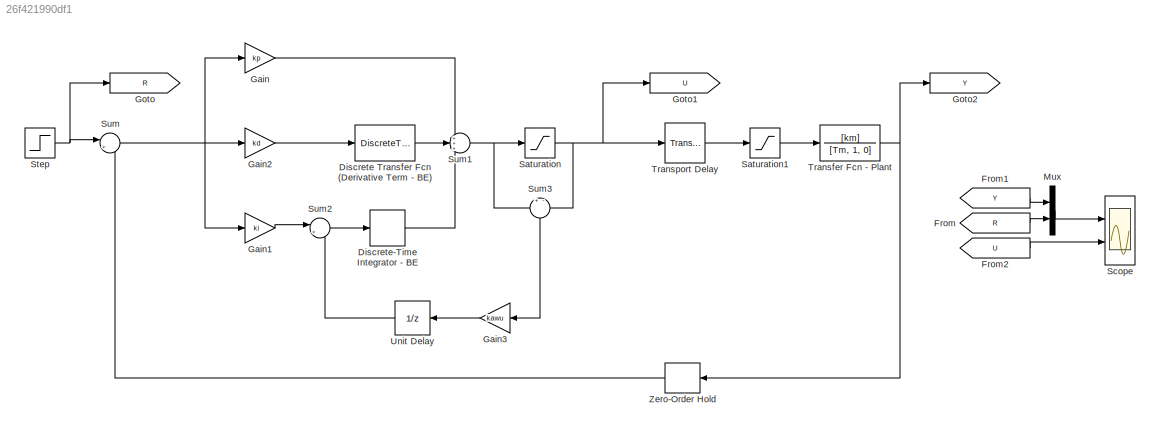
MODEL slx_26f421990df1
KIND model
CONFIG AbsTol = auto
CONFIG EnableMultiTasking = off
CONFIG FixedStep = auto
CONFIG MaxStep = 0.001
CONFIG MinStep = auto
CONFIG RelTol = 1e-3
CONFIG SampleTimeConstraint = Unconstrained
CONFIG Solver = ode45
CONFIG SolverName = ode45
CONFIG StartTime = 0.0
CONFIG StopTime = 1.5
BLOCK [DiscreteTransferFcn] Discrete Transfer Fcn (Derivative Term - BE)
  Denominator = [1, 0]
  InputPortMap = u0
  Numerator = (1/Ts)*[1, -1]
  Ports = [1, 1]
  SampleTime = Ts
BLOCK [DiscreteIntegrator] Discrete-Time Integrator - BE
  ICPrevOutput = DiscIntNeverNeededParam
  ICPrevScaledInput = DiscIntNeverNeededParam
  InitialConditionSetting = Auto
  IntegratorMethod = Integration: Backward Euler
  Ports = [1, 1]
  SampleTime = Ts
BLOCK [From] From
  GotoTag = R
BLOCK [From] From1
  GotoTag = Y
BLOCK [From] From2
  GotoTag = U
BLOCK [Gain] Gain
  Gain = kp
  OutDataTypeStr = Inherit: Inherit via internal rule
  ParamDataTypeStr = Inherit: Inherit via internal rule
  SaturateOnIntegerOverflow = off
BLOCK [Gain] Gain1
  Gain = ki
  OutDataTypeStr = Inherit: Inherit via internal rule
  ParamDataTypeStr = Inherit: Inherit via internal rule
  SaturateOnIntegerOverflow = off
BLOCK [Gain] Gain2
  Gain = kd
  OutDataTypeStr = Inherit: Inherit via internal rule
  ParamDataTypeStr = Inherit: Inherit via internal rule
  SaturateOnIntegerOverflow = off
BLOCK [Gain] Gain3
  Gain = kawu
  OutDataTypeStr = Inherit: Inherit via internal rule
  ParamDataTypeStr = Inherit: Inherit via internal rule
  SaturateOnIntegerOverflow = off
BLOCK [Goto] Goto
  GotoTag = R
BLOCK [Goto] Goto1
  GotoTag = U
BLOCK [Goto] Goto2
  GotoTag = Y
BLOCK [Mux] Mux
  DisplayOption = bar
  Inputs = 2
  Ports = [2, 1]
BLOCK [Saturate] Saturation
  InputPortMap = u0
  LowerLimit = -6
  Ports = [1, 1]
  UpperLimit = 6
BLOCK [Saturate] Saturation1
  InputPortMap = u0
  LowerLimit = -6
  Ports = [1, 1]
  UpperLimit = 6
BLOCK [Scope] Scope
  Floating = off
  NumInputPorts = 2
  Ports = [2]
  ScopeSpecificationString = Simulink.scopes.TimeScopeBlockCfg('CurrentConfiguration', extmgr.ConfigurationSet(extmgr.Configuration('Core','General UI',true),extmgr.Configuration('Core','Source UI',true),extmgr.Configuration('Sources','WiredSimulink',true,'DataLogging',true,'DataLoggingVariableName','simres','DataLoggingSaveFormat','StructureWithTime'),extmgr.Configuration('Visuals','Time Domain',true,'SerializedDisplays',{st...<+2064ch>
BLOCK [Step] Step
  SampleTime = Ts
  Time = 0.1
BLOCK [Sum] Sum
  IconShape = round
  InputSameDT = off
  Inputs = |+-
  OutDataTypeStr = Inherit: Inherit via internal rule
  Ports = [2, 1]
  SaturateOnIntegerOverflow = off
BLOCK [Sum] Sum1
  IconShape = round
  InputSameDT = off
  Inputs = +++
  OutDataTypeStr = Inherit: Inherit via internal rule
  Ports = [3, 1]
  SaturateOnIntegerOverflow = off
BLOCK [Sum] Sum2
  IconShape = round
  InputSameDT = off
  Inputs = |+-
  OutDataTypeStr = Inherit: Inherit via internal rule
  Ports = [2, 1]
  SaturateOnIntegerOverflow = off
BLOCK [Sum] Sum3
  IconShape = round
  InputSameDT = off
  Inputs = +-
  OutDataTypeStr = Inherit: Inherit via internal rule
  Ports = [2, 1]
  SaturateOnIntegerOverflow = off
BLOCK [TransferFcn] Transfer Fcn - Plant
  Denominator = [Tm, 1, 0]
  Numerator = [km]
BLOCK [TransportDelay] Transport Delay
  DelayTime = Td
  Ports = [1, 1]
BLOCK [UnitDelay] Unit Delay
  InputProcessing = Elements as channels (sample based)
  SampleTime = Ts
BLOCK [ZeroOrderHold] Zero-Order Hold
  SampleTime = Ts
LINE Discrete Transfer Fcn (Derivative Term - BE):1 -> Sum1:2
LINE Discrete-Time Integrator - BE:1 -> Sum1:3
LINE From1:1 -> Mux:1
LINE From2:1 -> Scope:2
LINE From:1 -> Mux:2
LINE Gain1:1 -> Sum2:1
LINE Gain2:1 -> Discrete Transfer Fcn (Derivative Term - BE):1
LINE Gain3:1 -> Unit Delay:1
LINE Gain:1 -> Sum1:1
LINE Mux:1 -> Scope:1
LINE Saturation1:1 -> Transfer Fcn - Plant:1
NET Saturation:1 -> Goto1:1, Sum3:2, Transport Delay:1
NET Step:1 -> Goto:1, Sum:1
NET Sum1:1 -> Saturation:1, Sum3:1
LINE Sum2:1 -> Discrete-Time Integrator - BE:1
LINE Sum3:1 -> Gain3:1
NET Sum:1 -> Gain1:1, Gain2:1, Gain:1
NET Transfer Fcn - Plant:1 -> Goto2:1, Zero-Order Hold:1
LINE Transport Delay:1 -> Saturation1:1
LINE Unit Delay:1 -> Sum2:2
LINE Zero-Order Hold:1 -> Sum:2
note: NET lines group one-source signal fan-out (src -> all destinations, sorted); 1:1 wires keep LINE
